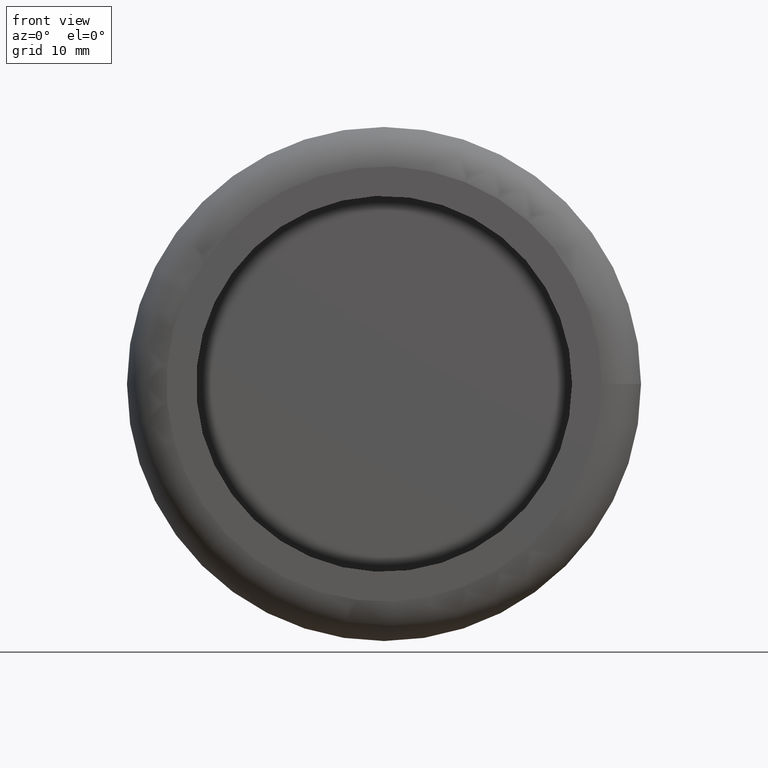
[diagram: clean part render]
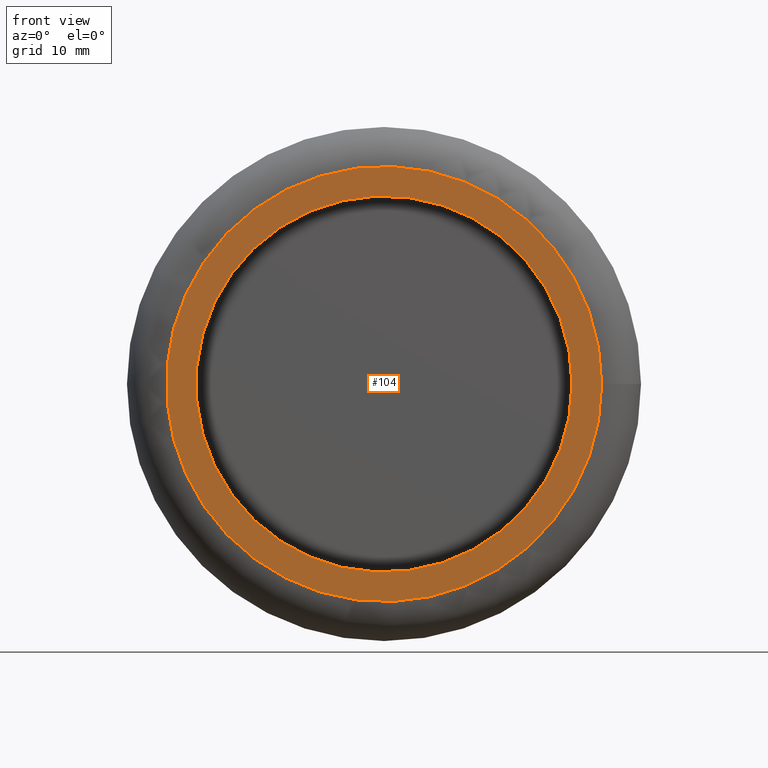
[diagram: same view with one face highlighted and labeled with its STEP entity id]
A machine part, front view. The second image highlights one B-rep face of the part: STEP entity #104.
In plain terms, the highlighted planar face has unit normal (0, -1, 0).
Its self-contained STEP definition (entity closure, byte-faithful):
#21=PLANE('',#123);
#28=FACE_BOUND('',#53,.T.);
#37=FACE_OUTER_BOUND('',#52,.T.);
#52=EDGE_LOOP('',(#92));
#53=EDGE_LOOP('',(#93));
#55=CIRCLE('',#109,27.);
#61=CIRCLE('',#122,31.25);
#63=VERTEX_POINT('',#164);
#69=VERTEX_POINT('',#183);
#71=EDGE_CURVE('',#63,#63,#55,.T.);
#77=EDGE_CURVE('',#69,#69,#61,.T.);
#92=ORIENTED_EDGE('',*,*,#77,.T.);
#93=ORIENTED_EDGE('',*,*,#71,.T.);
#104=ADVANCED_FACE('',(#37,#28),#21,.T.);
#109=AXIS2_PLACEMENT_3D('',#165,#130,#131);
#122=AXIS2_PLACEMENT_3D('',#184,#156,#157);
#123=AXIS2_PLACEMENT_3D('',#185,#158,#159);
#130=DIRECTION('center_axis',(0.,1.,0.));
#131=DIRECTION('ref_axis',(-1.,0.,0.));
#156=DIRECTION('center_axis',(0.,-1.,0.));
#157=DIRECTION('ref_axis',(1.,0.,0.));
#158=DIRECTION('center_axis',(0.,-1.,0.));
#159=DIRECTION('ref_axis',(0.,0.,-1.));
#164=CARTESIAN_POINT('',(27.,0.,3.30654635769785E-15));
#165=CARTESIAN_POINT('Origin',(0.,0.,0.));
#183=CARTESIAN_POINT('',(31.25,0.,0.));
#184=CARTESIAN_POINT('Origin',(0.,0.,0.));
#185=CARTESIAN_POINT('Origin',(0.,0.,0.));